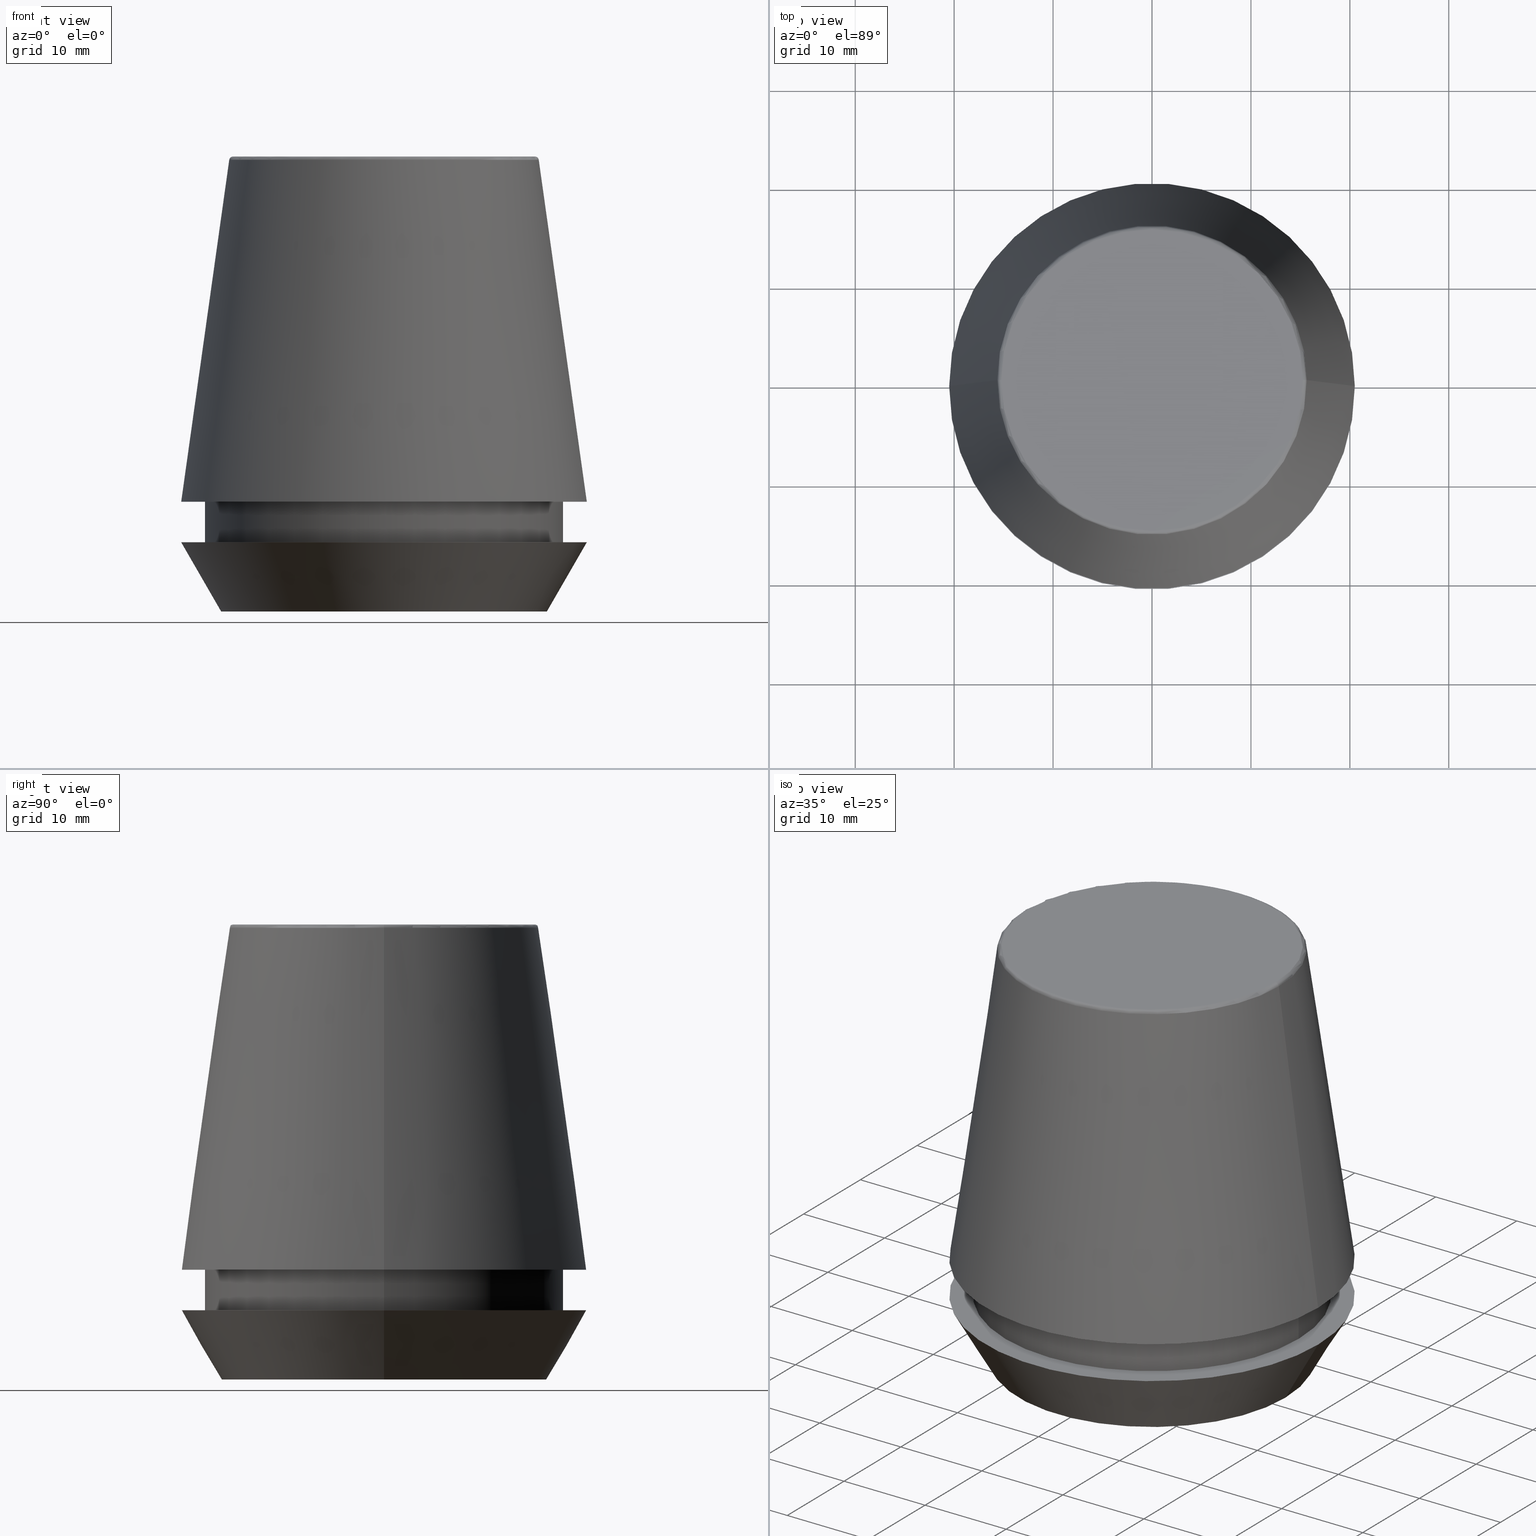
[diagram: canonical four-view strip — front | top / right | iso, engineering-drawing reading convention]
A machine part, canonical four-view strip (front | top / right | iso — engineering-drawing reading convention). The complete STEP part file that produces these views, byte-faithful:
ISO-10303-21;
HEADER;
FILE_DESCRIPTION (( 'STEP AP203' ),
    '1' );
FILE_NAME ('TAP COLLET ER 40G 8.0 X 6.3.STEP',
    '2019-04-10T03:46:29',
    ( '' ),
    ( '' ),
    'SwSTEP 2.0',
    'SolidWorks 2014',
    '' );
FILE_SCHEMA (( 'CONFIG_CONTROL_DESIGN' ));
ENDSEC;

DATA;
#1 = VERTEX_POINT ( 'NONE', #348 ) ;
#2 = CONICAL_SURFACE ( 'NONE', #286, 16.45854811567268100, 0.5235987755982921500 ) ;
#3 = DIRECTION ( 'NONE',  ( -0.0000000000000000000, -0.0000000000000000000, 1.000000000000000000 ) ) ;
#4 = CIRCLE ( 'NONE', #77, 15.24773554530077600 ) ;
#5 = CARTESIAN_POINT ( 'NONE',  ( 0.0000000000000000000, 0.0000000000000000000, 46.00000000000000000 ) ) ;
#6 = DIRECTION ( 'NONE',  ( -1.000000000000000000, 0.0000000000000000000, -0.0000000000000000000 ) ) ;
#7 = ORIENTED_EDGE ( 'NONE', *, *, #258, .F. ) ;
#8 = CARTESIAN_POINT ( 'NONE',  ( 0.0000000000000000000, 0.0000000000000000000, 45.65566924038402900 ) ) ;
#9 = ORIENTED_EDGE ( 'NONE', *, *, #387, .F. ) ;
#10 = DATE_TIME_ROLE ( 'creation_date' ) ;
#11 = AXIS2_PLACEMENT_3D ( 'NONE', #56, #340, #384 ) ;
#12 = CIRCLE ( 'NONE', #149, 20.50032537154048700 ) ;
#13 = CARTESIAN_POINT ( 'NONE',  ( 0.0000000000000000000, 0.0000000000000000000, 11.09999999999999800 ) ) ;
#14 = CARTESIAN_POINT ( 'NONE',  ( 18.10000000000000500, 0.0000000000000000000, 11.09999999999999800 ) ) ;
#15 = DIRECTION ( 'NONE',  ( -0.0000000000000000000, -0.0000000000000000000, 1.000000000000000000 ) ) ;
#16 = EDGE_CURVE ( 'NONE', #366, #275, #254, .T. ) ;
#17 = PERSON_AND_ORGANIZATION ( #337, #360 ) ;
#18 = DIRECTION ( 'NONE',  ( 1.000000000000000000, 0.0000000000000000000, 0.0000000000000000000 ) ) ;
#19 = CARTESIAN_POINT ( 'NONE',  ( 16.45854811567268100, 0.0000000000000000000, 0.0000000000000000000 ) ) ;
#20 = EDGE_LOOP ( 'NONE', ( #132, #333, #378, #45 ) ) ;
#21 = CARTESIAN_POINT ( 'NONE',  ( -18.10000000000000100, 2.216610706456709600E-015, 6.999999999999999100 ) ) ;
#22 = DIRECTION ( 'NONE',  ( -0.0000000000000000000, -0.0000000000000000000, 1.000000000000000000 ) ) ;
#23 = PERSON_AND_ORGANIZATION ( #337, #360 ) ;
#24 = FACE_OUTER_BOUND ( 'NONE', #211, .T. ) ;
#25 = CARTESIAN_POINT ( 'NONE',  ( 15.24773554530077600, 0.0000000000000000000, 45.60000000000000100 ) ) ;
#26 = EDGE_LOOP ( 'NONE', ( #370, #152, #321, #359 ) ) ;
#27 =( NAMED_UNIT ( * ) SI_UNIT ( $, .STERADIAN. ) SOLID_ANGLE_UNIT ( ) );
#28 = EDGE_CURVE ( 'NONE', #168, #187, #375, .T. ) ;
#29 = ADVANCED_FACE ( 'NONE', ( #386 ), #266, .T. ) ;
#30 = AXIS2_PLACEMENT_3D ( 'NONE', #142, #316, #113 ) ;
#31 = UNCERTAINTY_MEASURE_WITH_UNIT (LENGTH_MEASURE( 1.000000000000000100E-005 ), #268, 'distance_accuracy_value', 'NONE');
#32 = ORIENTED_EDGE ( 'NONE', *, *, #48, .F. ) ;
#33 = LOCAL_TIME ( 9, 16, 29.00000000000000000, #55 ) ;
#34 = FACE_OUTER_BOUND ( 'NONE', #87, .T. ) ;
#35 = LINE ( 'NONE', #341, #209 ) ;
#36 = APPROVAL ( #327, 'UNSPECIFIED' ) ;
#37 = DIRECTION ( 'NONE',  ( 1.000000000000000000, 0.0000000000000000000, 0.0000000000000000000 ) ) ;
#38 = PERSON_AND_ORGANIZATION ( #337, #360 ) ;
#39 = ORIENTED_EDGE ( 'NONE', *, *, #276, .T. ) ;
#40 = CARTESIAN_POINT ( 'NONE',  ( 20.50032537154048700, 2.510565784773633700E-015, 11.09999999999999800 ) ) ;
#41 = CC_DESIGN_PERSON_AND_ORGANIZATION_ASSIGNMENT ( #38, #380, ( #82 ) ) ;
#42 = DIRECTION ( 'NONE',  ( 1.000000000000000000, 0.0000000000000000000, 0.0000000000000000000 ) ) ;
#43 = DIRECTION ( 'NONE',  ( 1.000000000000000000, 0.0000000000000000000, 0.0000000000000000000 ) ) ;
#44 = FACE_OUTER_BOUND ( 'NONE', #159, .T. ) ;
#45 = ORIENTED_EDGE ( 'NONE', *, *, #221, .F. ) ;
#46 = CARTESIAN_POINT ( 'NONE',  ( 18.10000000000000500, 0.0000000000000000000, 46.00000000000000000 ) ) ;
#47 = DIRECTION ( 'NONE',  ( -0.0000000000000000000, -0.0000000000000000000, 1.000000000000000000 ) ) ;
#48 = EDGE_CURVE ( 'NONE', #329, #239, #357, .T. ) ;
#49 = AXIS2_PLACEMENT_3D ( 'NONE', #323, #176, #181 ) ;
#50 = COORDINATED_UNIVERSAL_TIME_OFFSET ( 5, 30, .AHEAD. ) ;
#51 = CARTESIAN_POINT ( 'NONE',  ( 0.0000000000000000000, 0.0000000000000000000, 0.0000000000000000000 ) ) ;
#52 = ORIENTED_EDGE ( 'NONE', *, *, #258, .T. ) ;
#53 = AXIS2_PLACEMENT_3D ( 'NONE', #51, #291, #79 ) ;
#54 = CARTESIAN_POINT ( 'NONE',  ( -20.50032537154048700, 0.0000000000000000000, 11.09999999999999800 ) ) ;
#55 = COORDINATED_UNIVERSAL_TIME_OFFSET ( 5, 30, .AHEAD. ) ;
#56 = CARTESIAN_POINT ( 'NONE',  ( 0.0000000000000000000, 0.0000000000000000000, 45.65566924038402900 ) ) ;
#57 = CARTESIAN_POINT ( 'NONE',  ( 0.0000000000000000000, 20.50000000000000000, 7.000000000000002700 ) ) ;
#58 = ADVANCED_FACE ( 'NONE', ( #374, #75 ), #345, .F. ) ;
#59 = LINE ( 'NONE', #54, #332 ) ;
#60 = AXIS2_PLACEMENT_3D ( 'NONE', #148, #22, #285 ) ;
#61 = CARTESIAN_POINT ( 'NONE',  ( -15.24773554530077600, 1.867309052979791600E-015, 45.60000000000000100 ) ) ;
#62 = CIRCLE ( 'NONE', #11, 15.64384277279740400 ) ;
#63 = VERTEX_POINT ( 'NONE', #21 ) ;
#64 = CARTESIAN_POINT ( 'NONE',  ( 15.64384277279740400, 2.213191991290356800E-015, 45.65566924038402900 ) ) ;
#65 = AXIS2_PLACEMENT_3D ( 'NONE', #212, #3, #336 ) ;
#66 = CC_DESIGN_DATE_AND_TIME_ASSIGNMENT ( #314, #10, ( #208 ) ) ;
#67 = DATE_AND_TIME ( #365, #124 ) ;
#68 = FACE_OUTER_BOUND ( 'NONE', #119, .T. ) ;
#69 = ORIENTED_EDGE ( 'NONE', *, *, #201, .T. ) ;
#70 = CARTESIAN_POINT ( 'NONE',  ( 0.0000000000000000000, 0.0000000000000000000, 0.0000000000000000000 ) ) ;
#71 = AXIS2_PLACEMENT_3D ( 'NONE', #244, #282, #72 ) ;
#72 = DIRECTION ( 'NONE',  ( 1.000000000000000000, 0.0000000000000000000, 0.0000000000000000000 ) ) ;
#73 = DIRECTION ( 'NONE',  ( -0.0000000000000000000, -0.0000000000000000000, 1.000000000000000000 ) ) ;
#74 = ORIENTED_EDGE ( 'NONE', *, *, #339, .F. ) ;
#75 = FACE_OUTER_BOUND ( 'NONE', #88, .T. ) ;
#76 = EDGE_LOOP ( 'NONE', ( #210, #249, #52, #261 ) ) ;
#77 = AXIS2_PLACEMENT_3D ( 'NONE', #313, #353, #324 ) ;
#78 = FACE_BOUND ( 'NONE', #274, .T. ) ;
#79 = DIRECTION ( 'NONE',  ( 1.000000000000000000, 0.0000000000000000000, 0.0000000000000000000 ) ) ;
#80 = CARTESIAN_POINT ( 'NONE',  ( -20.50000000000000000, 2.510525938252074100E-015, 7.000000000000006200 ) ) ;
#81 = CC_DESIGN_PERSON_AND_ORGANIZATION_ASSIGNMENT ( #85, #98, ( #322 ) ) ;
#82 = PRODUCT ( 'TAP COLLET ER 40G 8.0 X 6.3', 'TAP COLLET ER 40G 8.0 X 6.3', '', ( #145 ) ) ;
#83 = AXIS2_PLACEMENT_3D ( 'NONE', #13, #288, #306 ) ;
#84 = CARTESIAN_POINT ( 'NONE',  ( -16.45854811567268100, 2.263058382549599700E-015, 0.0000000000000000000 ) ) ;
#85 = PERSON_AND_ORGANIZATION ( #337, #360 ) ;
#86 = DIRECTION ( 'NONE',  ( 0.0000000000000000000, 0.0000000000000000000, -1.000000000000000000 ) ) ;
#87 = EDGE_LOOP ( 'NONE', ( #158, #253, #174, #308 ) ) ;
#88 = EDGE_LOOP ( 'NONE', ( #69, #241 ) ) ;
#89 = DIRECTION ( 'NONE',  ( 0.0000000000000000000, 0.0000000000000000000, -1.000000000000000000 ) ) ;
#90 = DIRECTION ( 'NONE',  ( 1.000000000000000000, 0.0000000000000000000, 0.0000000000000000000 ) ) ;
#91 = CYLINDRICAL_SURFACE ( 'NONE', #218, 18.10000000000000500 ) ;
#92 = DIRECTION ( 'NONE',  ( -0.0000000000000000000, -0.0000000000000000000, 1.000000000000000000 ) ) ;
#93 = APPLICATION_CONTEXT ( 'configuration controlled 3d designs of mechanical parts and assemblies' ) ;
#94 = PLANE ( 'NONE',  #49 ) ;
#95 = DIRECTION ( 'NONE',  ( -0.4999999999999941700, 6.123233995736694500E-017, 0.8660254037844420400 ) ) ;
#96 = EDGE_CURVE ( 'NONE', #112, #329, #59, .T. ) ;
#97 = LINE ( 'NONE', #195, #252 ) ;
#98 = PERSON_AND_ORGANIZATION_ROLE ( 'creator' ) ;
#99 = ORIENTED_EDGE ( 'NONE', *, *, #207, .T. ) ;
#100 = DIRECTION ( 'NONE',  ( 1.000000000000000000, 0.0000000000000000000, 0.0000000000000000000 ) ) ;
#101 = AXIS2_PLACEMENT_3D ( 'NONE', #8, #257, #190 ) ;
#102 = FACE_OUTER_BOUND ( 'NONE', #20, .T. ) ;
#103 = VERTEX_POINT ( 'NONE', #377 ) ;
#104 = AXIS2_PLACEMENT_3D ( 'NONE', #128, #219, #303 ) ;
#105 = EDGE_LOOP ( 'NONE', ( #106, #99, #330, #351 ) ) ;
#106 = ORIENTED_EDGE ( 'NONE', *, *, #28, .F. ) ;
#107 = DIRECTION ( 'NONE',  ( -0.0000000000000000000, -0.0000000000000000000, 1.000000000000000000 ) ) ;
#108 = DIRECTION ( 'NONE',  ( 1.000000000000000000, 0.0000000000000000000, 0.0000000000000000000 ) ) ;
#109 = DIRECTION ( 'NONE',  ( -0.0000000000000000000, -0.0000000000000000000, 1.000000000000000000 ) ) ;
#110 = ORIENTED_EDGE ( 'NONE', *, *, #48, .T. ) ;
#111 = DIRECTION ( 'NONE',  ( -0.0000000000000000000, -0.0000000000000000000, 1.000000000000000000 ) ) ;
#112 = VERTEX_POINT ( 'NONE', #225 ) ;
#113 = DIRECTION ( 'NONE',  ( 1.000000000000000000, 0.0000000000000000000, 0.0000000000000000000 ) ) ;
#114 = DIRECTION ( 'NONE',  ( 0.0000000000000000000, -1.000000000000000000, 0.0000000000000000000 ) ) ;
#115 = LINE ( 'NONE', #236, #122 ) ;
#116 = CIRCLE ( 'NONE', #83, 18.10000000000000500 ) ;
#117 = PERSON_AND_ORGANIZATION ( #337, #360 ) ;
#118 = APPROVAL ( #194, 'UNSPECIFIED' ) ;
#119 = EDGE_LOOP ( 'NONE', ( #74, #173, #307, #110 ) ) ;
#120 = DIRECTION ( 'NONE',  ( 0.1391731009600587200, 1.704378926181473400E-017, -0.9902680687415712500 ) ) ;
#121 = DIRECTION ( 'NONE',  ( 0.0000000000000000000, 0.0000000000000000000, 1.000000000000000000 ) ) ;
#122 = VECTOR ( 'NONE', #120, 1000.000000000000000 ) ;
#123 = CC_DESIGN_APPROVAL ( #269, ( #322 ) ) ;
#124 = LOCAL_TIME ( 9, 16, 29.00000000000000000, #259 ) ;
#125 = CIRCLE ( 'NONE', #222, 0.3999999999999975800 ) ;
#126 = ORIENTED_EDGE ( 'NONE', *, *, #343, .F. ) ;
#127 = VERTEX_POINT ( 'NONE', #19 ) ;
#128 = CARTESIAN_POINT ( 'NONE',  ( 0.0000000000000000000, 0.0000000000000000000, 11.09999999999999800 ) ) ;
#129 = PLANE ( 'NONE',  #162 ) ;
#130 = CARTESIAN_POINT ( 'NONE',  ( 0.0000000000000000000, 0.0000000000000000000, 11.09999999999999800 ) ) ;
#131 = VECTOR ( 'NONE', #95, 1000.000000000000000 ) ;
#132 = ORIENTED_EDGE ( 'NONE', *, *, #188, .F. ) ;
#133 = DIRECTION ( 'NONE',  ( 0.0000000000000000000, 0.0000000000000000000, -1.000000000000000000 ) ) ;
#134 = LINE ( 'NONE', #46, #350 ) ;
#135 = CIRCLE ( 'NONE', #60, 20.50000000000000000 ) ;
#136 = DATE_TIME_ROLE ( 'classification_date' ) ;
#137 = CARTESIAN_POINT ( 'NONE',  ( 0.0000000000000000000, 0.0000000000000000000, 6.999999999999999100 ) ) ;
#138 = DIRECTION ( 'NONE',  ( 0.4999999999999941700, 0.0000000000000000000, 0.8660254037844420400 ) ) ;
#139 = PRODUCT_RELATED_PRODUCT_CATEGORY ( 'detail', '', ( #82 ) ) ;
#140 = CARTESIAN_POINT ( 'NONE',  ( 0.0000000000000000000, 0.0000000000000000000, 46.00000000000000000 ) ) ;
#141 = TOROIDAL_SURFACE ( 'NONE', #172, 15.24773554530077600, 0.3999999999999991900 ) ;
#142 = CARTESIAN_POINT ( 'NONE',  ( 0.0000000000000000000, 0.0000000000000000000, 11.09999999999999800 ) ) ;
#143 = CARTESIAN_POINT ( 'NONE',  ( -16.45854811567268100, 2.015590826847124800E-015, 0.0000000000000000000 ) ) ;
#144 = ORIENTED_EDGE ( 'NONE', *, *, #177, .F. ) ;
#145 = MECHANICAL_CONTEXT ( 'NONE', #93, 'mechanical' ) ;
#146 = CARTESIAN_POINT ( 'NONE',  ( 0.0000000000000000000, 0.0000000000000000000, 11.09999999999999800 ) ) ;
#147 = AXIS2_PLACEMENT_3D ( 'NONE', #5, #107, #42 ) ;
#148 = CARTESIAN_POINT ( 'NONE',  ( 0.0000000000000000000, 0.0000000000000000000, 7.000000000000006200 ) ) ;
#149 = AXIS2_PLACEMENT_3D ( 'NONE', #130, #47, #43 ) ;
#150 = DIRECTION ( 'NONE',  ( 1.000000000000000000, 0.0000000000000000000, 0.0000000000000000000 ) ) ;
#151 = APPLICATION_PROTOCOL_DEFINITION ( 'international standard', 'config_control_design', 1994, #93 ) ;
#152 = ORIENTED_EDGE ( 'NONE', *, *, #387, .T. ) ;
#153 = VERTEX_POINT ( 'NONE', #373 ) ;
#154 = CARTESIAN_POINT ( 'NONE',  ( 15.24773554530077600, 0.0000000000000000000, 46.00000000000000000 ) ) ;
#155 = AXIS2_PLACEMENT_3D ( 'NONE', #137, #311, #108 ) ;
#156 = LOCAL_TIME ( 9, 16, 29.00000000000000000, #175 ) ;
#157 = CARTESIAN_POINT ( 'NONE',  ( 0.0000000000000000000, 15.24773554530077600, 46.00000000000000000 ) ) ;
#158 = ORIENTED_EDGE ( 'NONE', *, *, #358, .T. ) ;
#159 = EDGE_LOOP ( 'NONE', ( #379, #295, #126, #376 ) ) ;
#160 = CONICAL_SURFACE ( 'NONE', #104, 20.50032537154048700, 0.1396263401595396200 ) ;
#161 = CC_DESIGN_PERSON_AND_ORGANIZATION_ASSIGNMENT ( #364, #198, ( #322 ) ) ;
#162 = AXIS2_PLACEMENT_3D ( 'NONE', #157, #133, #6 ) ;
#163 = PLANE ( 'NONE',  #53 ) ;
#164 = CIRCLE ( 'NONE', #155, 18.10000000000000100 ) ;
#165 = DIRECTION ( 'NONE',  ( 1.000000000000000000, 0.0000000000000000000, 0.0000000000000000000 ) ) ;
#166 = ADVANCED_FACE ( 'NONE', ( #189 ), #328, .T. ) ;
#167 = APPROVAL_STATUS ( 'not_yet_approved' ) ;
#168 = VERTEX_POINT ( 'NONE', #84 ) ;
#169 = ADVANCED_FACE ( 'NONE', ( #24 ), #141, .T. ) ;
#170 = APPLICATION_PROTOCOL_DEFINITION ( 'international standard', 'config_control_design', 1994, #369 ) ;
#171 = FACE_OUTER_BOUND ( 'NONE', #26, .T. ) ;
#172 = AXIS2_PLACEMENT_3D ( 'NONE', #260, #223, #18 ) ;
#173 = ORIENTED_EDGE ( 'NONE', *, *, #270, .F. ) ;
#174 = ORIENTED_EDGE ( 'NONE', *, *, #201, .F. ) ;
#175 = COORDINATED_UNIVERSAL_TIME_OFFSET ( 5, 30, .AHEAD. ) ;
#176 = DIRECTION ( 'NONE',  ( 0.0000000000000000000, -0.0000000000000000000, 1.000000000000000000 ) ) ;
#177 = EDGE_CURVE ( 'NONE', #298, #63, #183, .T. ) ;
#178 = AXIS2_PLACEMENT_3D ( 'NONE', #278, #192, #319 ) ;
#179 = PERSON_AND_ORGANIZATION_ROLE ( 'creator' ) ;
#180 = CC_DESIGN_DATE_AND_TIME_ASSIGNMENT ( #182, #136, ( #204 ) ) ;
#181 = DIRECTION ( 'NONE',  ( 1.000000000000000000, 0.0000000000000000000, 0.0000000000000000000 ) ) ;
#182 = DATE_AND_TIME ( #356, #214 ) ;
#183 = CIRCLE ( 'NONE', #234, 18.10000000000000100 ) ;
#184 = ORIENTED_EDGE ( 'NONE', *, *, #16, .T. ) ;
#185 = EDGE_CURVE ( 'NONE', #127, #1, #35, .T. ) ;
#186 = APPROVAL_PERSON_ORGANIZATION ( #235, #269, #245 ) ;
#187 = VERTEX_POINT ( 'NONE', #80 ) ;
#188 = EDGE_CURVE ( 'NONE', #63, #153, #97, .T. ) ;
#189 = FACE_OUTER_BOUND ( 'NONE', #105, .T. ) ;
#190 = DIRECTION ( 'NONE',  ( 1.000000000000000000, 0.0000000000000000000, 0.0000000000000000000 ) ) ;
#191 = FACE_OUTER_BOUND ( 'NONE', #281, .T. ) ;
#192 = DIRECTION ( 'NONE',  ( -0.0000000000000000000, -0.0000000000000000000, 1.000000000000000000 ) ) ;
#193 = EDGE_CURVE ( 'NONE', #63, #298, #164, .T. ) ;
#194 = APPROVAL_STATUS ( 'not_yet_approved' ) ;
#195 = CARTESIAN_POINT ( 'NONE',  ( -18.10000000000000500, 2.216610706456710000E-015, 46.00000000000000000 ) ) ;
#196 = ADVANCED_FACE ( 'NONE', ( #191 ), #163, .F. ) ;
#197 = DIRECTION ( 'NONE',  ( -0.1391731009600587200, 0.0000000000000000000, -0.9902680687415712500 ) ) ;
#198 = PERSON_AND_ORGANIZATION_ROLE ( 'design_supplier' ) ;
#199 = DATE_AND_TIME ( #250, #33 ) ;
#200 = CIRCLE ( 'NONE', #71, 20.50000000000000000 ) ;
#201 = EDGE_CURVE ( 'NONE', #1, #187, #200, .T. ) ;
#202 = EDGE_LOOP ( 'NONE', ( #32, #7 ) ) ;
#203 = DIRECTION ( 'NONE',  ( -1.000000000000000000, 1.224646799147353900E-016, 0.0000000000000000000 ) ) ;
#204 = SECURITY_CLASSIFICATION ( '', '', #372 ) ;
#205 = CALENDAR_DATE ( 2019, 10, 4 ) ;
#206 = SHAPE_DEFINITION_REPRESENTATION ( #263, #248 ) ;
#207 = EDGE_CURVE ( 'NONE', #168, #127, #284, .T. ) ;
#208 = PRODUCT_DEFINITION ( 'UNKNOWN', '', #322, #302 ) ;
#209 = VECTOR ( 'NONE', #138, 1000.000000000000000 ) ;
#210 = ORIENTED_EDGE ( 'NONE', *, *, #362, .F. ) ;
#211 = EDGE_LOOP ( 'NONE', ( #9, #352, #184, #232 ) ) ;
#212 = CARTESIAN_POINT ( 'NONE',  ( 0.0000000000000000000, 0.0000000000000000000, 0.0000000000000000000 ) ) ;
#213 = AXIS2_PLACEMENT_3D ( 'NONE', #146, #92, #150 ) ;
#214 = LOCAL_TIME ( 9, 16, 29.00000000000000000, #301 ) ;
#215 = EDGE_CURVE ( 'NONE', #275, #103, #4, .T. ) ;
#216 = VERTEX_POINT ( 'NONE', #14 ) ;
#217 = DIRECTION ( 'NONE',  ( -0.0000000000000000000, -0.0000000000000000000, 1.000000000000000000 ) ) ;
#218 = AXIS2_PLACEMENT_3D ( 'NONE', #140, #383, #344 ) ;
#219 = DIRECTION ( 'NONE',  ( 0.0000000000000000000, 0.0000000000000000000, -1.000000000000000000 ) ) ;
#220 = CC_DESIGN_PERSON_AND_ORGANIZATION_ASSIGNMENT ( #304, #255, ( #204 ) ) ;
#221 = EDGE_CURVE ( 'NONE', #153, #216, #116, .T. ) ;
#222 = AXIS2_PLACEMENT_3D ( 'NONE', #61, #290, #203 ) ;
#223 = DIRECTION ( 'NONE',  ( -0.0000000000000000000, -0.0000000000000000000, 1.000000000000000000 ) ) ;
#224 = ORIENTED_EDGE ( 'NONE', *, *, #215, .T. ) ;
#225 = CARTESIAN_POINT ( 'NONE',  ( -15.64384277279740400, 0.0000000000000000000, 45.65566924038402900 ) ) ;
#226 = ORIENTED_EDGE ( 'NONE', *, *, #221, .T. ) ;
#227 = ORIENTED_EDGE ( 'NONE', *, *, #193, .F. ) ;
#228 = AXIS2_PLACEMENT_3D ( 'NONE', #247, #73, #283 ) ;
#229 = AXIS2_PLACEMENT_3D ( 'NONE', #355, #121, #90 ) ;
#230 = CIRCLE ( 'NONE', #213, 18.10000000000000500 ) ;
#231 = APPROVAL_ROLE ( '' ) ;
#232 = ORIENTED_EDGE ( 'NONE', *, *, #276, .F. ) ;
#233 = CARTESIAN_POINT ( 'NONE',  ( 0.0000000000000000000, 0.0000000000000000000, 11.09999999999999800 ) ) ;
#234 = AXIS2_PLACEMENT_3D ( 'NONE', #312, #109, #292 ) ;
#235 = PERSON_AND_ORGANIZATION ( #337, #360 ) ;
#236 = CARTESIAN_POINT ( 'NONE',  ( 20.50032537154048700, 2.510565784773633700E-015, 11.09999999999999800 ) ) ;
#237 = AXIS2_PLACEMENT_3D ( 'NONE', #233, #89, #264 ) ;
#238 = AXIS2_PLACEMENT_3D ( 'NONE', #70, #217, #100 ) ;
#239 = VERTEX_POINT ( 'NONE', #40 ) ;
#240 = ORIENTED_EDGE ( 'NONE', *, *, #343, .T. ) ;
#241 = ORIENTED_EDGE ( 'NONE', *, *, #371, .T. ) ;
#242 = CYLINDRICAL_SURFACE ( 'NONE', #147, 18.10000000000000500 ) ;
#243 = AXIS2_PLACEMENT_3D ( 'NONE', #57, #86, #262 ) ;
#244 = CARTESIAN_POINT ( 'NONE',  ( 0.0000000000000000000, 0.0000000000000000000, 7.000000000000006200 ) ) ;
#245 = APPROVAL_ROLE ( '' ) ;
#246 = DATE_AND_TIME ( #272, #338 ) ;
#247 = CARTESIAN_POINT ( 'NONE',  ( 0.0000000000000000000, 0.0000000000000000000, 46.00000000000000000 ) ) ;
#248 = ADVANCED_BREP_SHAPE_REPRESENTATION ( 'TAP COLLET ER 40G 8.0 X 6.3', ( #367, #229 ), #256 ) ;
#249 = ORIENTED_EDGE ( 'NONE', *, *, #339, .T. ) ;
#250 = CALENDAR_DATE ( 2019, 10, 4 ) ;
#251 = CARTESIAN_POINT ( 'NONE',  ( 0.0000000000000000000, 0.0000000000000000000, 0.0000000000000000000 ) ) ;
#252 = VECTOR ( 'NONE', #15, 1000.000000000000000 ) ;
#253 = ORIENTED_EDGE ( 'NONE', *, *, #28, .T. ) ;
#254 = CIRCLE ( 'NONE', #293, 0.3999999999999975800 ) ;
#255 = PERSON_AND_ORGANIZATION_ROLE ( 'classification_officer' ) ;
#256 =( GEOMETRIC_REPRESENTATION_CONTEXT ( 3 ) GLOBAL_UNCERTAINTY_ASSIGNED_CONTEXT ( ( #31 ) ) GLOBAL_UNIT_ASSIGNED_CONTEXT ( ( #268, #309, #27 ) ) REPRESENTATION_CONTEXT ( 'NONE', 'WORKASPACE' ) );
#257 = DIRECTION ( 'NONE',  ( -0.0000000000000000000, -0.0000000000000000000, 1.000000000000000000 ) ) ;
#258 = EDGE_CURVE ( 'NONE', #239, #329, #12, .T. ) ;
#259 = COORDINATED_UNIVERSAL_TIME_OFFSET ( 5, 30, .AHEAD. ) ;
#260 = CARTESIAN_POINT ( 'NONE',  ( 0.0000000000000000000, 0.0000000000000000000, 45.60000000000000100 ) ) ;
#261 = ORIENTED_EDGE ( 'NONE', *, *, #96, .F. ) ;
#262 = DIRECTION ( 'NONE',  ( -1.000000000000000000, 0.0000000000000000000, -0.0000000000000000000 ) ) ;
#263 = PRODUCT_DEFINITION_SHAPE ( 'NONE', 'NONE',  #208 ) ;
#264 = DIRECTION ( 'NONE',  ( -1.000000000000000000, 0.0000000000000000000, 0.0000000000000000000 ) ) ;
#265 = FACE_OUTER_BOUND ( 'NONE', #202, .T. ) ;
#266 = CONICAL_SURFACE ( 'NONE', #237, 20.50032537154048700, 0.1396263401595396200 ) ;
#267 = ORIENTED_EDGE ( 'NONE', *, *, #358, .F. ) ;
#268 =( LENGTH_UNIT ( ) NAMED_UNIT ( * ) SI_UNIT ( .MILLI., .METRE. ) );
#269 = APPROVAL ( #167, 'UNSPECIFIED' ) ;
#270 = EDGE_CURVE ( 'NONE', #112, #366, #277, .T. ) ;
#271 = CC_DESIGN_APPROVAL ( #36, ( #208 ) ) ;
#272 = CALENDAR_DATE ( 2019, 10, 4 ) ;
#273 = ADVANCED_FACE ( 'NONE', ( #68 ), #160, .T. ) ;
#274 = EDGE_LOOP ( 'NONE', ( #240, #226 ) ) ;
#275 = VERTEX_POINT ( 'NONE', #154 ) ;
#276 = EDGE_CURVE ( 'NONE', #103, #275, #334, .T. ) ;
#277 = CIRCLE ( 'NONE', #101, 15.64384277279740400 ) ;
#278 = CARTESIAN_POINT ( 'NONE',  ( 0.0000000000000000000, 0.0000000000000000000, 45.60000000000000100 ) ) ;
#279 = ORIENTED_EDGE ( 'NONE', *, *, #207, .F. ) ;
#280 = AXIS2_PLACEMENT_3D ( 'NONE', #342, #111, #165 ) ;
#281 = EDGE_LOOP ( 'NONE', ( #267, #279 ) ) ;
#282 = DIRECTION ( 'NONE',  ( -0.0000000000000000000, -0.0000000000000000000, 1.000000000000000000 ) ) ;
#283 = DIRECTION ( 'NONE',  ( 1.000000000000000000, 0.0000000000000000000, 0.0000000000000000000 ) ) ;
#284 = CIRCLE ( 'NONE', #65, 16.45854811567268100 ) ;
#285 = DIRECTION ( 'NONE',  ( 1.000000000000000000, 0.0000000000000000000, 0.0000000000000000000 ) ) ;
#286 = AXIS2_PLACEMENT_3D ( 'NONE', #251, #368, #37 ) ;
#287 = EDGE_LOOP ( 'NONE', ( #224, #39 ) ) ;
#288 = DIRECTION ( 'NONE',  ( -0.0000000000000000000, -0.0000000000000000000, 1.000000000000000000 ) ) ;
#289 = APPROVAL_DATE_TIME ( #246, #36 ) ;
#290 = DIRECTION ( 'NONE',  ( 1.224646799147353200E-016, 1.000000000000000000, 0.0000000000000000000 ) ) ;
#291 = DIRECTION ( 'NONE',  ( 0.0000000000000000000, -0.0000000000000000000, 1.000000000000000000 ) ) ;
#292 = DIRECTION ( 'NONE',  ( 1.000000000000000000, 0.0000000000000000000, 0.0000000000000000000 ) ) ;
#293 = AXIS2_PLACEMENT_3D ( 'NONE', #25, #114, #296 ) ;
#294 = APPROVAL_PERSON_ORGANIZATION ( #23, #118, #381 ) ;
#295 = ORIENTED_EDGE ( 'NONE', *, *, #188, .T. ) ;
#296 = DIRECTION ( 'NONE',  ( 0.0000000000000000000, 0.0000000000000000000, -1.000000000000000000 ) ) ;
#297 = ADVANCED_FACE ( 'NONE', ( #102 ), #242, .T. ) ;
#298 = VERTEX_POINT ( 'NONE', #305 ) ;
#299 = ADVANCED_FACE ( 'NONE', ( #320 ), #129, .F. ) ;
#300 = CC_DESIGN_PERSON_AND_ORGANIZATION_ASSIGNMENT ( #17, #179, ( #208 ) ) ;
#301 = COORDINATED_UNIVERSAL_TIME_OFFSET ( 5, 30, .AHEAD. ) ;
#302 = DESIGN_CONTEXT ( 'detailed design', #369, 'design' ) ;
#303 = DIRECTION ( 'NONE',  ( -1.000000000000000000, 0.0000000000000000000, 0.0000000000000000000 ) ) ;
#304 = PERSON_AND_ORGANIZATION ( #337, #360 ) ;
#305 = CARTESIAN_POINT ( 'NONE',  ( 18.10000000000000100, 0.0000000000000000000, 6.999999999999999100 ) ) ;
#306 = DIRECTION ( 'NONE',  ( 1.000000000000000000, 0.0000000000000000000, 0.0000000000000000000 ) ) ;
#307 = ORIENTED_EDGE ( 'NONE', *, *, #96, .T. ) ;
#308 = ORIENTED_EDGE ( 'NONE', *, *, #185, .F. ) ;
#309 =( NAMED_UNIT ( * ) PLANE_ANGLE_UNIT ( ) SI_UNIT ( $, .RADIAN. ) );
#310 = CIRCLE ( 'NONE', #238, 16.45854811567268100 ) ;
#311 = DIRECTION ( 'NONE',  ( -0.0000000000000000000, -0.0000000000000000000, 1.000000000000000000 ) ) ;
#312 = CARTESIAN_POINT ( 'NONE',  ( 0.0000000000000000000, 0.0000000000000000000, 6.999999999999999100 ) ) ;
#313 = CARTESIAN_POINT ( 'NONE',  ( 0.0000000000000000000, 0.0000000000000000000, 46.00000000000000000 ) ) ;
#314 = DATE_AND_TIME ( #205, #156 ) ;
#315 = ADVANCED_FACE ( 'NONE', ( #34 ), #2, .T. ) ;
#316 = DIRECTION ( 'NONE',  ( -0.0000000000000000000, -0.0000000000000000000, 1.000000000000000000 ) ) ;
#317 = CLOSED_SHELL ( 'NONE', ( #318, #29, #325, #315, #196, #166, #58, #297, #346, #273, #169, #299 ) ) ;
#318 = ADVANCED_FACE ( 'NONE', ( #171 ), #347, .T. ) ;
#319 = DIRECTION ( 'NONE',  ( 1.000000000000000000, 0.0000000000000000000, 0.0000000000000000000 ) ) ;
#320 = FACE_OUTER_BOUND ( 'NONE', #287, .T. ) ;
#321 = ORIENTED_EDGE ( 'NONE', *, *, #215, .F. ) ;
#322 = PRODUCT_DEFINITION_FORMATION_WITH_SPECIFIED_SOURCE ( 'ANY', '', #82, .NOT_KNOWN. ) ;
#323 = CARTESIAN_POINT ( 'NONE',  ( 0.0000000000000000000, 20.50032537154048700, 11.09999999999999800 ) ) ;
#324 = DIRECTION ( 'NONE',  ( 1.000000000000000000, 0.0000000000000000000, 0.0000000000000000000 ) ) ;
#325 = ADVANCED_FACE ( 'NONE', ( #44 ), #91, .T. ) ;
#326 = APPROVAL_DATE_TIME ( #199, #118 ) ;
#327 = APPROVAL_STATUS ( 'not_yet_approved' ) ;
#328 = CONICAL_SURFACE ( 'NONE', #280, 16.45854811567268100, 0.5235987755982921500 ) ;
#329 = VERTEX_POINT ( 'NONE', #349 ) ;
#330 = ORIENTED_EDGE ( 'NONE', *, *, #185, .T. ) ;
#331 = APPROVAL_PERSON_ORGANIZATION ( #117, #36, #231 ) ;
#332 = VECTOR ( 'NONE', #197, 1000.000000000000000 ) ;
#333 = ORIENTED_EDGE ( 'NONE', *, *, #193, .T. ) ;
#334 = CIRCLE ( 'NONE', #228, 15.24773554530077600 ) ;
#335 = EDGE_LOOP ( 'NONE', ( #144, #227 ) ) ;
#336 = DIRECTION ( 'NONE',  ( 1.000000000000000000, 0.0000000000000000000, 0.0000000000000000000 ) ) ;
#337 = PERSON ( 'UNSPECIFIED', 'UNSPECIFIED', 'UNSPECIFIED', ('UNSPECIFIED'), ('UNSPECIFIED'), ('UNSPECIFIED') ) ;
#338 = LOCAL_TIME ( 9, 16, 29.00000000000000000, #50 ) ;
#339 = EDGE_CURVE ( 'NONE', #366, #239, #115, .T. ) ;
#340 = DIRECTION ( 'NONE',  ( -0.0000000000000000000, -0.0000000000000000000, 1.000000000000000000 ) ) ;
#341 = CARTESIAN_POINT ( 'NONE',  ( 16.45854811567268100, 0.0000000000000000000, 0.0000000000000000000 ) ) ;
#342 = CARTESIAN_POINT ( 'NONE',  ( 0.0000000000000000000, 0.0000000000000000000, 0.0000000000000000000 ) ) ;
#343 = EDGE_CURVE ( 'NONE', #216, #153, #230, .T. ) ;
#344 = DIRECTION ( 'NONE',  ( 1.000000000000000000, 0.0000000000000000000, 0.0000000000000000000 ) ) ;
#345 = PLANE ( 'NONE',  #243 ) ;
#346 = ADVANCED_FACE ( 'NONE', ( #265, #78 ), #94, .F. ) ;
#347 = TOROIDAL_SURFACE ( 'NONE', #178, 15.24773554530077600, 0.3999999999999991900 ) ;
#348 = CARTESIAN_POINT ( 'NONE',  ( 20.50000000000000000, 0.0000000000000000000, 7.000000000000006200 ) ) ;
#349 = CARTESIAN_POINT ( 'NONE',  ( -20.50032537154048700, 0.0000000000000000000, 11.09999999999999800 ) ) ;
#350 = VECTOR ( 'NONE', #354, 1000.000000000000000 ) ;
#351 = ORIENTED_EDGE ( 'NONE', *, *, #371, .F. ) ;
#352 = ORIENTED_EDGE ( 'NONE', *, *, #270, .T. ) ;
#353 = DIRECTION ( 'NONE',  ( -0.0000000000000000000, -0.0000000000000000000, 1.000000000000000000 ) ) ;
#354 = DIRECTION ( 'NONE',  ( -0.0000000000000000000, -0.0000000000000000000, 1.000000000000000000 ) ) ;
#355 = CARTESIAN_POINT ( 'NONE',  ( 0.0000000000000000000, 0.0000000000000000000, 0.0000000000000000000 ) ) ;
#356 = CALENDAR_DATE ( 2019, 10, 4 ) ;
#357 = CIRCLE ( 'NONE', #30, 20.50032537154048700 ) ;
#358 = EDGE_CURVE ( 'NONE', #127, #168, #310, .T. ) ;
#359 = ORIENTED_EDGE ( 'NONE', *, *, #16, .F. ) ;
#360 = ORGANIZATION ( 'UNSPECIFIED', 'UNSPECIFIED', '' ) ;
#361 = CC_DESIGN_SECURITY_CLASSIFICATION ( #204, ( #322 ) ) ;
#362 = EDGE_CURVE ( 'NONE', #366, #112, #62, .T. ) ;
#363 = EDGE_CURVE ( 'NONE', #298, #216, #134, .T. ) ;
#364 = PERSON_AND_ORGANIZATION ( #337, #360 ) ;
#365 = CALENDAR_DATE ( 2019, 10, 4 ) ;
#366 = VERTEX_POINT ( 'NONE', #64 ) ;
#367 = MANIFOLD_SOLID_BREP ( 'Revolve1', #317 ) ;
#368 = DIRECTION ( 'NONE',  ( -0.0000000000000000000, -0.0000000000000000000, 1.000000000000000000 ) ) ;
#369 = APPLICATION_CONTEXT ( 'configuration controlled 3d designs of mechanical parts and assemblies' ) ;
#370 = ORIENTED_EDGE ( 'NONE', *, *, #362, .T. ) ;
#371 = EDGE_CURVE ( 'NONE', #187, #1, #135, .T. ) ;
#372 = SECURITY_CLASSIFICATION_LEVEL ( 'unclassified' ) ;
#373 = CARTESIAN_POINT ( 'NONE',  ( -18.10000000000000500, 2.216610706456710000E-015, 11.09999999999999800 ) ) ;
#374 = FACE_BOUND ( 'NONE', #335, .T. ) ;
#375 = LINE ( 'NONE', #143, #131 ) ;
#376 = ORIENTED_EDGE ( 'NONE', *, *, #363, .F. ) ;
#377 = CARTESIAN_POINT ( 'NONE',  ( -15.24773554530077600, 1.891563625393435400E-015, 46.00000000000000000 ) ) ;
#378 = ORIENTED_EDGE ( 'NONE', *, *, #363, .T. ) ;
#379 = ORIENTED_EDGE ( 'NONE', *, *, #177, .T. ) ;
#380 = PERSON_AND_ORGANIZATION_ROLE ( 'design_owner' ) ;
#381 = APPROVAL_ROLE ( '' ) ;
#382 = CC_DESIGN_APPROVAL ( #118, ( #204 ) ) ;
#383 = DIRECTION ( 'NONE',  ( -0.0000000000000000000, -0.0000000000000000000, 1.000000000000000000 ) ) ;
#384 = DIRECTION ( 'NONE',  ( 1.000000000000000000, 0.0000000000000000000, 0.0000000000000000000 ) ) ;
#385 = APPROVAL_DATE_TIME ( #67, #269 ) ;
#386 = FACE_OUTER_BOUND ( 'NONE', #76, .T. ) ;
#387 = EDGE_CURVE ( 'NONE', #112, #103, #125, .T. ) ;
ENDSEC;
END-ISO-10303-21;
